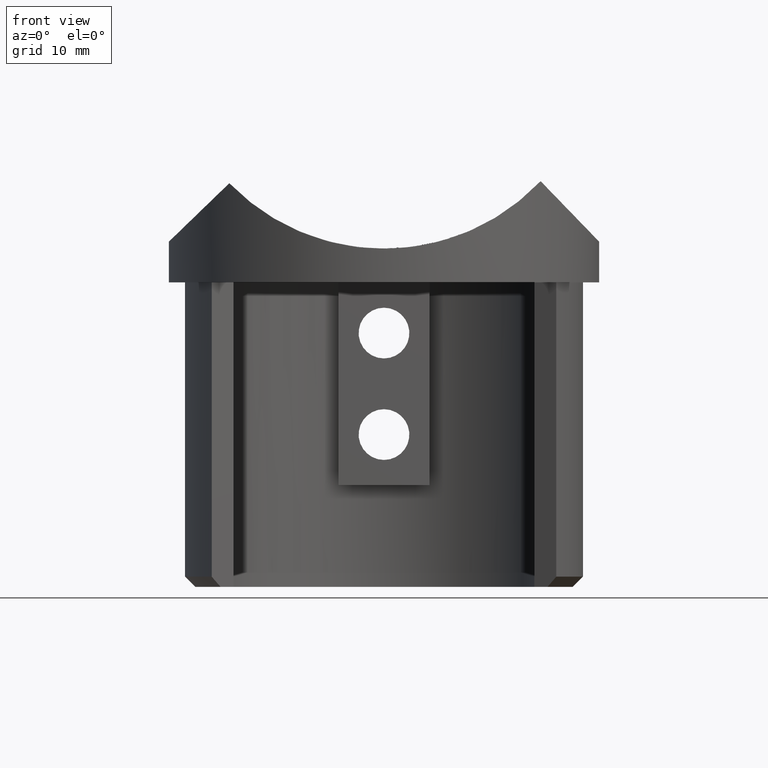
[diagram: clean part render]
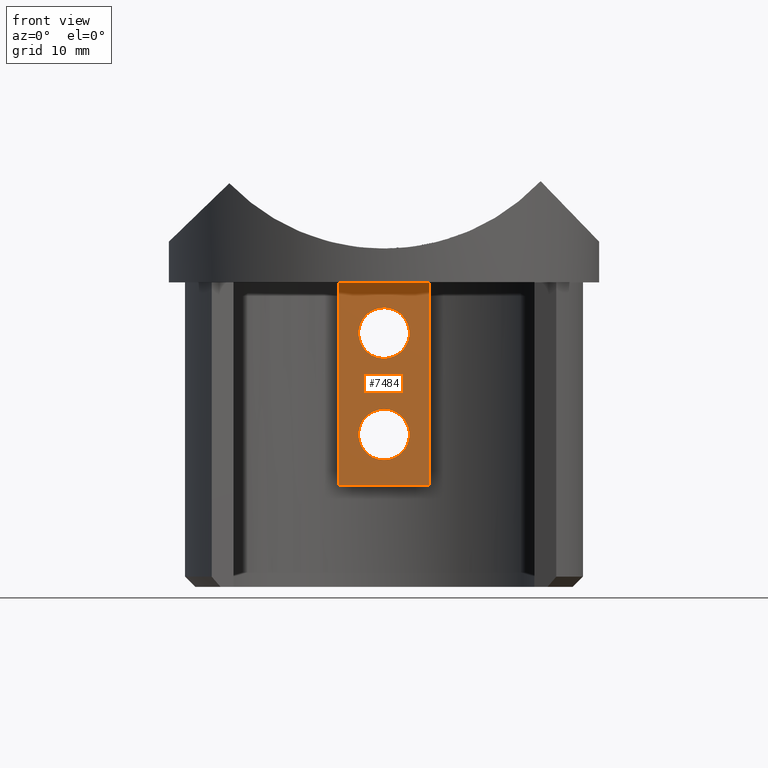
[diagram: same view with one face highlighted and labeled with its STEP entity id]
A machine part, front view. The second image highlights one B-rep face of the part: STEP entity #7484.
In plain terms, the highlighted planar face has unit normal (-0, 1, 0).
Its self-contained STEP definition (entity closure, byte-faithful):
#103 = EDGE_LOOP ( 'NONE', ( #14649, #8046, #1327, #5685 ) ) ;
#129 = EDGE_CURVE ( 'NONE', #5501, #5122, #15632, .T. ) ;
#350 = CARTESIAN_POINT ( 'NONE',  ( -4.500000000000007105, 12.20000000000000284, 0.000000000000000000 ) ) ;
#407 = EDGE_LOOP ( 'NONE', ( #15114, #1849 ) ) ;
#452 = DIRECTION ( 'NONE',  ( -0.000000000000000000, -1.000000000000000000, -0.000000000000000000 ) ) ;
#566 = AXIS2_PLACEMENT_3D ( 'NONE', #3285, #15393, #6972 ) ;
#626 = EDGE_CURVE ( 'NONE', #13728, #2454, #8239, .T. ) ;
#709 = DIRECTION ( 'NONE',  ( 0.000000000000000000, 0.000000000000000000, -1.000000000000000000 ) ) ;
#855 = DIRECTION ( 'NONE',  ( 1.000000000000000000, -0.000000000000000000, -0.000000000000000000 ) ) ;
#1043 = VECTOR ( 'NONE', #7211, 1000.000000000000000 ) ;
#1327 = ORIENTED_EDGE ( 'NONE', *, *, #15486, .T. ) ;
#1849 = ORIENTED_EDGE ( 'NONE', *, *, #5967, .F. ) ;
#2045 = CARTESIAN_POINT ( 'NONE',  ( 0.000000000000000000, 12.20000000000000284, -17.49999999999999645 ) ) ;
#2132 = CARTESIAN_POINT ( 'NONE',  ( 0.000000000000000000, 12.20000000000000284, -15.00000000000000000 ) ) ;
#2324 = VERTEX_POINT ( 'NONE', #6227 ) ;
#2414 = AXIS2_PLACEMENT_3D ( 'NONE', #6637, #11504, #12739 ) ;
#2454 = VERTEX_POINT ( 'NONE', #350 ) ;
#3285 = CARTESIAN_POINT ( 'NONE',  ( 0.000000000000000000, 12.20000000000000284, -15.00000000000000000 ) ) ;
#3540 = DIRECTION ( 'NONE',  ( -0.000000000000000000, -0.000000000000000000, 1.000000000000000000 ) ) ;
#3600 = CARTESIAN_POINT ( 'NONE',  ( 3.061616997868381662E-16, 12.20000000000000284, -2.500000000000001332 ) ) ;
#4521 = DIRECTION ( 'NONE',  ( 0.000000000000000000, -0.000000000000000000, 1.000000000000000000 ) ) ;
#5122 = VERTEX_POINT ( 'NONE', #9775 ) ;
#5465 = CARTESIAN_POINT ( 'NONE',  ( 0.000000000000000000, 12.20000000000000284, 0.000000000000000000 ) ) ;
#5501 = VERTEX_POINT ( 'NONE', #3600 ) ;
#5657 = AXIS2_PLACEMENT_3D ( 'NONE', #13883, #452, #709 ) ;
#5685 = ORIENTED_EDGE ( 'NONE', *, *, #12455, .T. ) ;
#5752 = VERTEX_POINT ( 'NONE', #12381 ) ;
#5967 = EDGE_CURVE ( 'NONE', #5752, #6666, #11131, .T. ) ;
#6227 = CARTESIAN_POINT ( 'NONE',  ( 4.500000000000002665, 12.20000000000000284, -19.99999999999999645 ) ) ;
#6637 = CARTESIAN_POINT ( 'NONE',  ( 0.000000000000000000, 12.20000000000000284, -5.000000000000000000 ) ) ;
#6666 = VERTEX_POINT ( 'NONE', #2045 ) ;
#6972 = DIRECTION ( 'NONE',  ( 0.000000000000000000, 0.000000000000000000, -1.000000000000000000 ) ) ;
#7069 = FACE_BOUND ( 'NONE', #13022, .T. ) ;
#7211 = DIRECTION ( 'NONE',  ( -1.000000000000000000, -0.000000000000000000, -1.204669080539448111E-16 ) ) ;
#7484 = ADVANCED_FACE ( 'NONE', ( #7069, #13893, #10109 ), #14024, .F. ) ;
#7637 = EDGE_CURVE ( 'NONE', #6666, #5752, #11820, .T. ) ;
#7684 = LINE ( 'NONE', #14136, #13755 ) ;
#7856 = AXIS2_PLACEMENT_3D ( 'NONE', #5465, #11533, #4521 ) ;
#7909 = VECTOR ( 'NONE', #9603, 1000.000000000000000 ) ;
#8046 = ORIENTED_EDGE ( 'NONE', *, *, #14093, .T. ) ;
#8239 = LINE ( 'NONE', #14361, #1043 ) ;
#8396 = EDGE_CURVE ( 'NONE', #5122, #5501, #9351, .T. ) ;
#8774 = AXIS2_PLACEMENT_3D ( 'NONE', #2132, #15329, #10615 ) ;
#9017 = VERTEX_POINT ( 'NONE', #12777 ) ;
#9351 = CIRCLE ( 'NONE', #5657, 2.499999999999998668 ) ;
#9463 = VECTOR ( 'NONE', #3540, 1000.000000000000000 ) ;
#9603 = DIRECTION ( 'NONE',  ( 5.204170427930422269E-16, -0.000000000000000000, -1.000000000000000000 ) ) ;
#9775 = CARTESIAN_POINT ( 'NONE',  ( 0.000000000000000000, 12.20000000000000284, -7.499999999999999112 ) ) ;
#10109 = FACE_OUTER_BOUND ( 'NONE', #103, .T. ) ;
#10615 = DIRECTION ( 'NONE',  ( 0.000000000000000000, 0.000000000000000000, -1.000000000000000000 ) ) ;
#11131 = CIRCLE ( 'NONE', #8774, 2.499999999999998668 ) ;
#11504 = DIRECTION ( 'NONE',  ( -0.000000000000000000, -1.000000000000000000, -0.000000000000000000 ) ) ;
#11533 = DIRECTION ( 'NONE',  ( -0.000000000000000000, 1.000000000000000000, 0.000000000000000000 ) ) ;
#11820 = CIRCLE ( 'NONE', #566, 2.499999999999998668 ) ;
#12164 = CARTESIAN_POINT ( 'NONE',  ( 4.500000000000002665, 12.20000000000000284, 6.505213034913026604E-16 ) ) ;
#12185 = CARTESIAN_POINT ( 'NONE',  ( -4.499999999999997335, 12.20000000000000284, -19.99999999999999645 ) ) ;
#12381 = CARTESIAN_POINT ( 'NONE',  ( 3.061616997868382155E-16, 12.20000000000000284, -12.50000000000000000 ) ) ;
#12435 = ORIENTED_EDGE ( 'NONE', *, *, #8396, .F. ) ;
#12454 = LINE ( 'NONE', #12185, #7909 ) ;
#12455 = EDGE_CURVE ( 'NONE', #2324, #13728, #13808, .T. ) ;
#12739 = DIRECTION ( 'NONE',  ( 0.000000000000000000, 0.000000000000000000, -1.000000000000000000 ) ) ;
#12777 = CARTESIAN_POINT ( 'NONE',  ( -4.499999999999997335, 12.20000000000000284, -19.99999999999999645 ) ) ;
#13022 = EDGE_LOOP ( 'NONE', ( #12435, #15126 ) ) ;
#13728 = VERTEX_POINT ( 'NONE', #13930 ) ;
#13755 = VECTOR ( 'NONE', #855, 1000.000000000000000 ) ;
#13808 = LINE ( 'NONE', #12164, #9463 ) ;
#13883 = CARTESIAN_POINT ( 'NONE',  ( 0.000000000000000000, 12.20000000000000284, -5.000000000000000000 ) ) ;
#13893 = FACE_BOUND ( 'NONE', #407, .T. ) ;
#13930 = CARTESIAN_POINT ( 'NONE',  ( 4.500000000000002665, 12.20000000000000284, 0.000000000000000000 ) ) ;
#14024 = PLANE ( 'NONE',  #7856 ) ;
#14093 = EDGE_CURVE ( 'NONE', #2454, #9017, #12454, .T. ) ;
#14136 = CARTESIAN_POINT ( 'NONE',  ( 4.500000000000002665, 12.20000000000000284, -19.99999999999999645 ) ) ;
#14361 = CARTESIAN_POINT ( 'NONE',  ( -4.500000000000007105, 12.20000000000000284, -4.336808689942017736E-16 ) ) ;
#14649 = ORIENTED_EDGE ( 'NONE', *, *, #626, .T. ) ;
#15114 = ORIENTED_EDGE ( 'NONE', *, *, #7637, .F. ) ;
#15126 = ORIENTED_EDGE ( 'NONE', *, *, #129, .F. ) ;
#15329 = DIRECTION ( 'NONE',  ( -0.000000000000000000, -1.000000000000000000, -0.000000000000000000 ) ) ;
#15393 = DIRECTION ( 'NONE',  ( -0.000000000000000000, -1.000000000000000000, -0.000000000000000000 ) ) ;
#15486 = EDGE_CURVE ( 'NONE', #9017, #2324, #7684, .T. ) ;
#15632 = CIRCLE ( 'NONE', #2414, 2.499999999999998668 ) ;